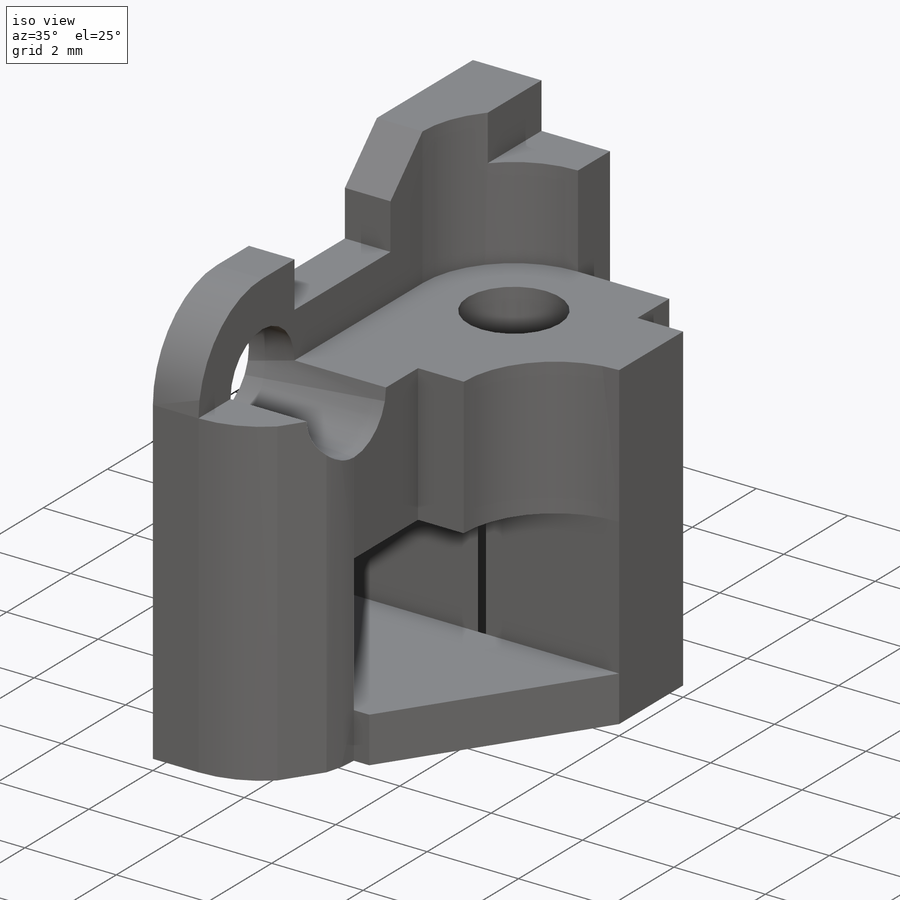
[diagram: iso view]
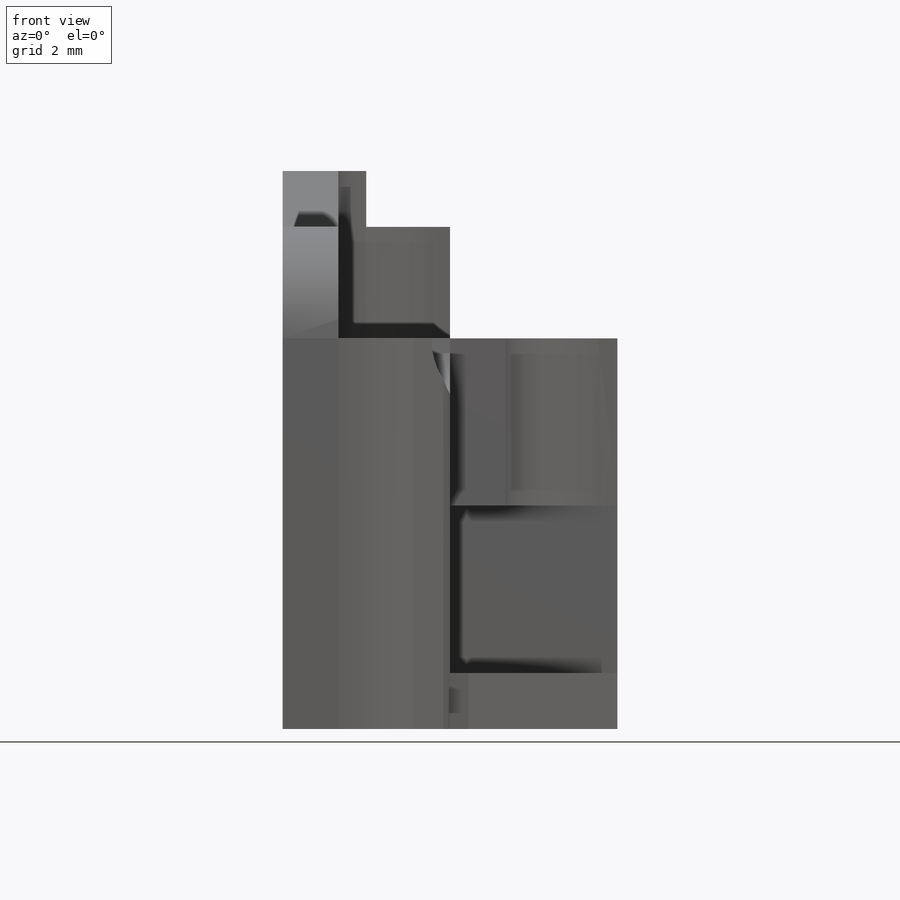
[diagram: front view]
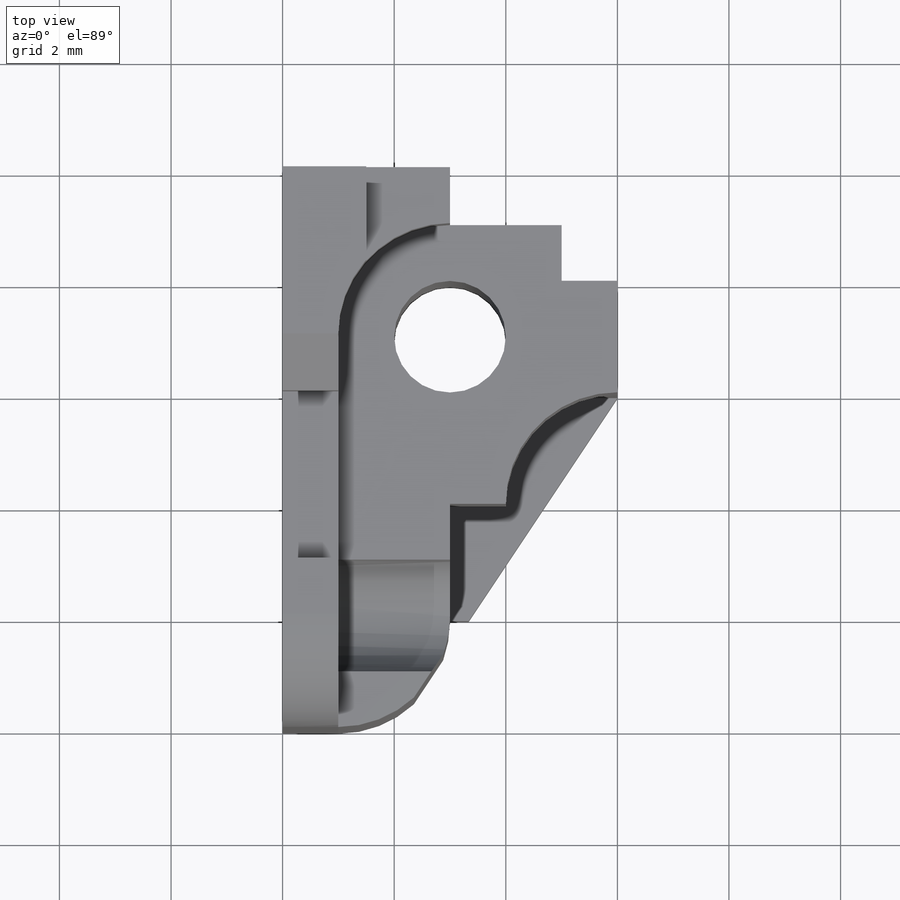
[diagram: top view]
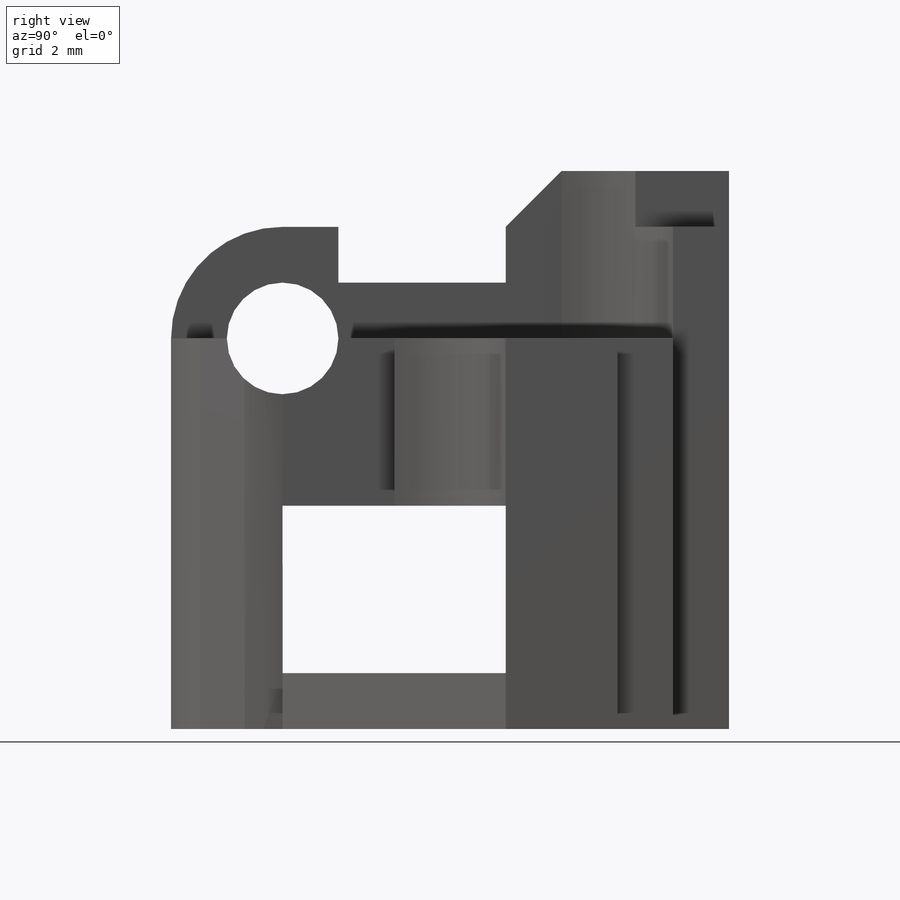
[diagram: right view]
SOLIDWORKS PART (.sldprt)
format: sldprt  version: not decoded by parser v0  size: 398,336 bytes
history: native  units: mm
features: sketch x14, cut_extrude x11, material x1, extrude x1 (+13 scaffold rows collapsed)
feature tree (40):
  scaffold x13  (default folders/planes/origin — collapsed)
  material  "Material <not specified>"
  sketch  "Sketch1"  dims[D1=6.0mm D2=3.0mm D3=1.5mm D4=1.0mm D5=2.0mm D6=7.0mm D7=10.0mm]
  extrude  "Boss-Extrude1"  Depth=10mm
  sketch  "Sketch3"  dims[D1=~1.004111mm D2=2.0mm D3=1.0mm D4=2.0mm]
  cut_extrude  "Cut-Extrude3"  [1 undecoded]
  sketch  "Sketch5"  dims[D3=2.0mm D1=2.0mm D2=3.0mm]
  cut_extrude  "Cut-Extrude5"  Depth=15mm
  sketch  "Sketch7"  dims[D1=~0.997944mm]
  cut_extrude  "Cut-Extrude7"  Depth=4mm
  sketch  "Sketch8"  dims[c1.D7=2.0mm c1.D8=2.0mm c1.D1=3.0mm c1.D2=3.0mm c1.D3=1.0mm c2.D2=3.0mm c2.D4=2.0mm c2.D5=1.0mm c2.D6=1.0mm c2.D7=2.0mm]
  cut_extrude  "Cut-Extrude10"  Depth=4mm
  sketch  "Sketch9"  dims[D2=2.0mm D1=1.0mm]
  cut_extrude  "Cut-Extrude12"  Depth=14mm
  sketch  "Sketch10"  dims[D1=2.0mm D2=2.0mm D3=1.0mm D4=~1.998599mm]
  cut_extrude  "Cut-Extrude14"  Depth=6mm
  sketch  "Sketch12"  dims[D1=3.0mm]
  cut_extrude  "Cut-Extrude15"  [1 undecoded]
  sketch  "Sketch18"
  cut_extrude  "Cut-Extrude29"  Depth=2mm
  sketch  "Sketch21"
  cut_extrude  "Cut-Extrude30"  Depth=2mm
  sketch  "Sketch22"  dims[D1=4.0mm D2=2.0mm]
  cut_extrude  "Cut-Extrude31"  Depth=7mm
  sketch  "Sketch23"
  cut_extrude  "Cut-Extrude33"  Depth=10mm
  sketch  "Sketch24"  dims[D1=3.0mm]
  sketch  "3DSketch4"
decode coverage: 20 of 26 modeling features carry decoded parameters
note: ~ marks probable driven/reference dimensions
note: 2 parameter values undecoded
note: suppression state not decoded; provenance and decode notes live in map.json
